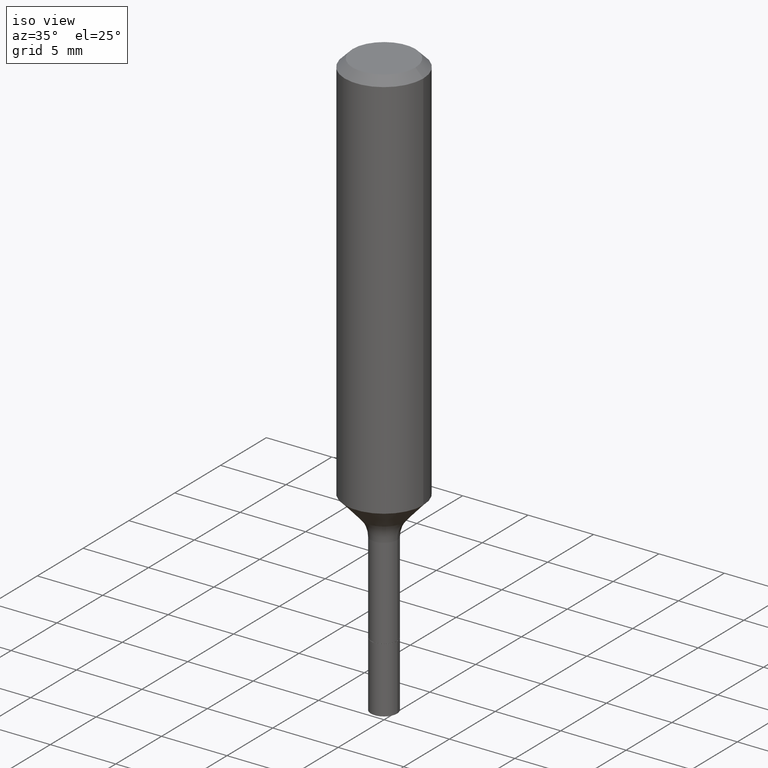
[diagram: clean part render]
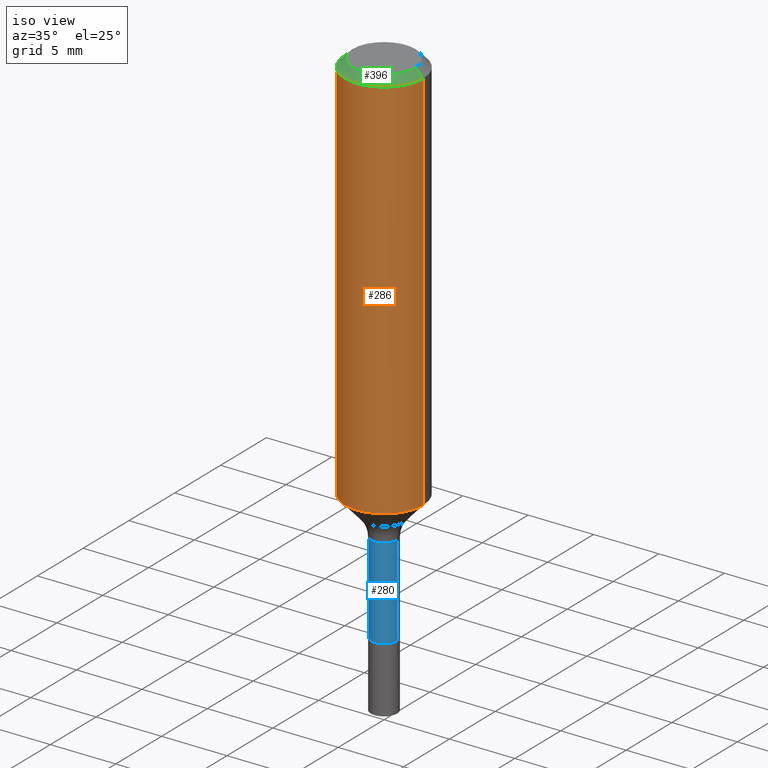
[diagram: same view with three faces highlighted in distinct colors, each labeled with its STEP entity id]
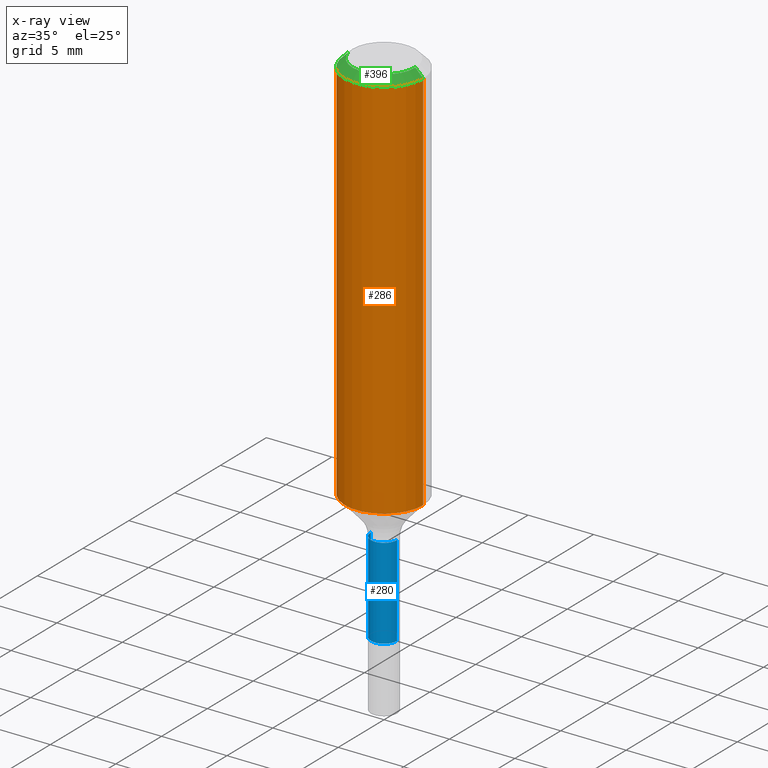
[diagram: x-ray of the same camera — body ghosted, the three highlighted faces saturated]
A machine part, iso view with three faces highlighted in distinct colors.
The next image is the same camera in x-ray (body ghosted, the three faces saturated) — at least one of them is partly hidden behind the body in this view.
Their STEP definitions:

[orange] entity #286 — the highlighted cylindrical surface (partial cylindrical patch) has radius 2.9997 mm, axis along (-0, 0, 1).
#8 = VERTEX_POINT ( 'NONE', #454 ) ;
#26 = CARTESIAN_POINT ( 'NONE',  ( 5.776197320209326656E-31, -8.246878922347558061E-17, -0.02362000000000013741 ) ) ;
#36 = VERTEX_POINT ( 'NONE', #187 ) ;
#57 = EDGE_LOOP ( 'NONE', ( #487, #238, #99, #422 ) ) ;
#61 = VECTOR ( 'NONE', #281, 39.37007874015748143 ) ;
#71 = VERTEX_POINT ( 'NONE', #182 ) ;
#98 = DIRECTION ( 'NONE',  ( -2.445468806185136597E-29, 3.491481338843145583E-15, 1.000000000000000000 ) ) ;
#99 = ORIENTED_EDGE ( 'NONE', *, *, #335, .T. ) ;
#104 = CYLINDRICAL_SURFACE ( 'NONE', #314, 0.1181000000000000660 ) ;
#108 = CARTESIAN_POINT ( 'NONE',  ( 0.000000000000000000, 0.000000000000000000, 0.000000000000000000 ) ) ;
#133 = EDGE_CURVE ( 'NONE', #412, #36, #359, .T. ) ;
#146 = DIRECTION ( 'NONE',  ( 1.000000000000000000, -6.982962677686266711E-15, 4.876176775795936353E-29 ) ) ;
#182 = CARTESIAN_POINT ( 'NONE',  ( 0.1181000000000001354, -4.957687469367858112E-15, -1.183738126036360860 ) ) ;
#187 = CARTESIAN_POINT ( 'NONE',  ( -0.1180999999999999966, -1.268583212245612878E-15, -0.02362000000000013741 ) ) ;
#200 = CARTESIAN_POINT ( 'NONE',  ( -0.1181000000000001354, -3.293848606200430074E-15, -1.183738126036360860 ) ) ;
#212 = VECTOR ( 'NONE', #218, 39.37007874015748143 ) ;
#218 = DIRECTION ( 'NONE',  ( -2.445468806185136877E-29, 3.491481338843145188E-15, 1.000000000000000000 ) ) ;
#224 = CARTESIAN_POINT ( 'NONE',  ( 2.894794661913970224E-29, -4.132999577133109060E-15, -1.183738126036360860 ) ) ;
#238 = ORIENTED_EDGE ( 'NONE', *, *, #490, .T. ) ;
#242 = AXIS2_PLACEMENT_3D ( 'NONE', #224, #506, #310 ) ;
#267 = CIRCLE ( 'NONE', #242, 0.1181000000000001354 ) ;
#281 = DIRECTION ( 'NONE',  ( -2.445468806185136877E-29, 3.491481338843145188E-15, 1.000000000000000000 ) ) ;
#284 = CARTESIAN_POINT ( 'NONE',  ( -0.1181000000000000660, 8.391509709326787887E-16, -5.809262341591047287E-30 ) ) ;
#286 = ADVANCED_FACE ( 'NONE', ( #508 ), #104, .T. ) ;
#310 = DIRECTION ( 'NONE',  ( 1.000000000000000000, -6.982962677686269077E-15, 0.000000000000000000 ) ) ;
#314 = AXIS2_PLACEMENT_3D ( 'NONE', #108, #98, #146 ) ;
#335 = EDGE_CURVE ( 'NONE', #71, #8, #391, .T. ) ;
#359 = LINE ( 'NONE', #284, #61 ) ;
#361 = CIRCLE ( 'NONE', #509, 0.1180999999999999966 ) ;
#391 = LINE ( 'NONE', #462, #212 ) ;
#412 = VERTEX_POINT ( 'NONE', #200 ) ;
#422 = ORIENTED_EDGE ( 'NONE', *, *, #438, .F. ) ;
#438 = EDGE_CURVE ( 'NONE', #36, #8, #361, .T. ) ;
#454 = CARTESIAN_POINT ( 'NONE',  ( 0.1180999999999999966, -9.071566814582237199E-16, -0.02362000000000013741 ) ) ;
#462 = CARTESIAN_POINT ( 'NONE',  ( 0.1181000000000000660, -8.246878922347485584E-16, 5.758764772215003944E-30 ) ) ;
#470 = DIRECTION ( 'NONE',  ( -2.445468806185136597E-29, 3.491481338843145583E-15, 1.000000000000000000 ) ) ;
#487 = ORIENTED_EDGE ( 'NONE', *, *, #133, .F. ) ;
#490 = EDGE_CURVE ( 'NONE', #412, #71, #267, .T. ) ;
#503 = DIRECTION ( 'NONE',  ( 1.000000000000000000, -6.982962677686266711E-15, 0.000000000000000000 ) ) ;
#506 = DIRECTION ( 'NONE',  ( -2.445468806185136597E-29, 3.491481338843145583E-15, 1.000000000000000000 ) ) ;
#508 = FACE_OUTER_BOUND ( 'NONE', #57, .T. ) ;
#509 = AXIS2_PLACEMENT_3D ( 'NONE', #26, #470, #503 ) ;

[blue] entity #280 — the highlighted cylindrical surface (edge-blend (fillet) strip) has radius 0.9995 mm, axis along (-0, 0, 1).
#20 = CIRCLE ( 'NONE', #82, 0.03935000000000000303 ) ;
#39 = VERTEX_POINT ( 'NONE', #265 ) ;
#51 = DIRECTION ( 'NONE',  ( -2.445468806185136597E-29, 3.491481338843145583E-15, 1.000000000000000000 ) ) ;
#82 = AXIS2_PLACEMENT_3D ( 'NONE', #111, #402, #290 ) ;
#86 = ORIENTED_EDGE ( 'NONE', *, *, #198, .T. ) ;
#101 = CARTESIAN_POINT ( 'NONE',  ( 0.000000000000000000, 0.000000000000000000, 0.000000000000000000 ) ) ;
#106 = LINE ( 'NONE', #460, #431 ) ;
#111 = CARTESIAN_POINT ( 'NONE',  ( 3.849656994696641770E-29, -5.496289923606880350E-15, -1.574200000000000044 ) ) ;
#138 = DIRECTION ( 'NONE',  ( 1.000000000000000000, -6.982962677686275388E-15, 0.000000000000000000 ) ) ;
#161 = DIRECTION ( 'NONE',  ( -2.445468806185136877E-29, 3.491481338843145188E-15, 1.000000000000000000 ) ) ;
#163 = EDGE_LOOP ( 'NONE', ( #201, #86, #289, #295 ) ) ;
#173 = VECTOR ( 'NONE', #161, 39.37007874015748143 ) ;
#198 = EDGE_CURVE ( 'NONE', #39, #323, #20, .T. ) ;
#201 = ORIENTED_EDGE ( 'NONE', *, *, #230, .F. ) ;
#225 = FACE_OUTER_BOUND ( 'NONE', #163, .T. ) ;
#228 = CARTESIAN_POINT ( 'NONE',  ( 3.178375807398822119E-29, -4.537878296094436237E-15, -1.299700000000000077 ) ) ;
#230 = EDGE_CURVE ( 'NONE', #39, #285, #411, .T. ) ;
#232 = CARTESIAN_POINT ( 'NONE',  ( -0.03934999999999998221, 2.795985665215992968E-16, -1.935600958015304591E-30 ) ) ;
#265 = CARTESIAN_POINT ( 'NONE',  ( -0.03935000000000000303, -4.737485543329059687E-15, -1.574200000000000044 ) ) ;
#271 = CARTESIAN_POINT ( 'NONE',  ( 0.03935000000000000303, -5.771069504973835267E-15, -1.574200000000000044 ) ) ;
#274 = DIRECTION ( 'NONE',  ( -2.445468806185136597E-29, 3.491481338843145583E-15, 1.000000000000000000 ) ) ;
#280 = ADVANCED_FACE ( 'NONE', ( #225 ), #349, .T. ) ;
#285 = VERTEX_POINT ( 'NONE', #507 ) ;
#289 = ORIENTED_EDGE ( 'NONE', *, *, #477, .T. ) ;
#290 = DIRECTION ( 'NONE',  ( 1.000000000000000000, -6.982962677686269077E-15, 0.000000000000000000 ) ) ;
#294 = EDGE_CURVE ( 'NONE', #285, #346, #473, .T. ) ;
#295 = ORIENTED_EDGE ( 'NONE', *, *, #294, .F. ) ;
#300 = DIRECTION ( 'NONE',  ( -2.445468806185136877E-29, 3.491481338843145188E-15, 1.000000000000000000 ) ) ;
#323 = VERTEX_POINT ( 'NONE', #271 ) ;
#346 = VERTEX_POINT ( 'NONE', #380 ) ;
#349 = CYLINDRICAL_SURFACE ( 'NONE', #374, 0.03934999999999998221 ) ;
#374 = AXIS2_PLACEMENT_3D ( 'NONE', #101, #51, #468 ) ;
#380 = CARTESIAN_POINT ( 'NONE',  ( 0.03934999999999996834, -4.812657877461391154E-15, -1.299700000000000077 ) ) ;
#402 = DIRECTION ( 'NONE',  ( -2.445468806185136597E-29, 3.491481338843145583E-15, 1.000000000000000000 ) ) ;
#411 = LINE ( 'NONE', #232, #173 ) ;
#431 = VECTOR ( 'NONE', #300, 39.37007874015748143 ) ;
#460 = CARTESIAN_POINT ( 'NONE',  ( 0.03934999999999998221, -2.747795813669544732E-16, 1.918775561275700023E-30 ) ) ;
#468 = DIRECTION ( 'NONE',  ( 1.000000000000000000, -6.982962677686266711E-15, 4.876176775795936353E-29 ) ) ;
#473 = CIRCLE ( 'NONE', #512, 0.03934999999999996834 ) ;
#477 = EDGE_CURVE ( 'NONE', #323, #346, #106, .T. ) ;
#507 = CARTESIAN_POINT ( 'NONE',  ( -0.03934999999999996834, -4.737485543329059687E-15, -1.299700000000000077 ) ) ;
#512 = AXIS2_PLACEMENT_3D ( 'NONE', #228, #274, #138 ) ;

[green] entity #396 — the highlighted conical surface has half-angle 45 deg.
#6 = DIRECTION ( 'NONE',  ( -1.000000000000000000, 6.982962677686266711E-15, 0.000000000000000000 ) ) ;
#8 = VERTEX_POINT ( 'NONE', #454 ) ;
#26 = CARTESIAN_POINT ( 'NONE',  ( 5.776197320209326656E-31, -8.246878922347558061E-17, -0.02362000000000013741 ) ) ;
#27 = EDGE_CURVE ( 'NONE', #254, #36, #355, .T. ) ;
#28 = AXIS2_PLACEMENT_3D ( 'NONE', #471, #311, #312 ) ;
#33 = VECTOR ( 'NONE', #309, 39.37007874015748143 ) ;
#34 = LINE ( 'NONE', #250, #432 ) ;
#36 = VERTEX_POINT ( 'NONE', #187 ) ;
#42 = ORIENTED_EDGE ( 'NONE', *, *, #169, .F. ) ;
#50 = CIRCLE ( 'NONE', #28, 0.09447999999999998066 ) ;
#79 = DIRECTION ( 'NONE',  ( 0.7071067811865461294, -7.319954787623251312E-15, -0.7071067811865489050 ) ) ;
#123 = ORIENTED_EDGE ( 'NONE', *, *, #275, .F. ) ;
#132 = AXIS2_PLACEMENT_3D ( 'NONE', #444, #279, #6 ) ;
#160 = ORIENTED_EDGE ( 'NONE', *, *, #27, .T. ) ;
#169 = EDGE_CURVE ( 'NONE', #283, #8, #34, .T. ) ;
#176 = ORIENTED_EDGE ( 'NONE', *, *, #438, .T. ) ;
#187 = CARTESIAN_POINT ( 'NONE',  ( -0.1180999999999999966, -1.268583212245612878E-15, -0.02362000000000013741 ) ) ;
#250 = CARTESIAN_POINT ( 'NONE',  ( 0.1180999999999999966, -8.926936027602933910E-16, -0.02362000000000013741 ) ) ;
#254 = VERTEX_POINT ( 'NONE', #342 ) ;
#269 = CARTESIAN_POINT ( 'NONE',  ( 0.09447999999999998066, -7.704367267948738690E-16, -3.085620075131172158E-17 ) ) ;
#275 = EDGE_CURVE ( 'NONE', #254, #283, #50, .T. ) ;
#279 = DIRECTION ( 'NONE',  ( 2.445468806185136597E-29, -3.491481338843145583E-15, -1.000000000000000000 ) ) ;
#283 = VERTEX_POINT ( 'NONE', #269 ) ;
#309 = DIRECTION ( 'NONE',  ( -0.7071067811865461294, 2.468850131082242072E-15, -0.7071067811865489050 ) ) ;
#311 = DIRECTION ( 'NONE',  ( -2.445468806185136597E-29, 3.491481338843145583E-15, 1.000000000000000000 ) ) ;
#312 = DIRECTION ( 'NONE',  ( 1.000000000000000000, -6.982962677686267499E-15, 4.875432709231658792E-29 ) ) ;
#342 = CARTESIAN_POINT ( 'NONE',  ( -0.09447999999999998066, 7.009847083995354710E-16, -3.085620075132147757E-17 ) ) ;
#355 = LINE ( 'NONE', #469, #33 ) ;
#358 = CONICAL_SURFACE ( 'NONE', #132, 0.1180999999999999966, 0.7853981633974463916 ) ;
#361 = CIRCLE ( 'NONE', #509, 0.1180999999999999966 ) ;
#396 = ADVANCED_FACE ( 'NONE', ( #400 ), #358, .T. ) ;
#400 = FACE_OUTER_BOUND ( 'NONE', #518, .T. ) ;
#432 = VECTOR ( 'NONE', #79, 39.37007874015748143 ) ;
#438 = EDGE_CURVE ( 'NONE', #36, #8, #361, .T. ) ;
#444 = CARTESIAN_POINT ( 'NONE',  ( 5.776197320209326656E-31, -8.246878922347558061E-17, -0.02362000000000013741 ) ) ;
#454 = CARTESIAN_POINT ( 'NONE',  ( 0.1180999999999999966, -9.071566814582237199E-16, -0.02362000000000013741 ) ) ;
#469 = CARTESIAN_POINT ( 'NONE',  ( -0.1180999999999999966, 7.422191030112725094E-16, -0.02362000000000013741 ) ) ;
#470 = DIRECTION ( 'NONE',  ( -2.445468806185136597E-29, 3.491481338843145583E-15, 1.000000000000000000 ) ) ;
#471 = CARTESIAN_POINT ( 'NONE',  ( 7.545787641473140628E-46, -1.077338491108201769E-31, -3.085620075131671975E-17 ) ) ;
#503 = DIRECTION ( 'NONE',  ( 1.000000000000000000, -6.982962677686266711E-15, 0.000000000000000000 ) ) ;
#509 = AXIS2_PLACEMENT_3D ( 'NONE', #26, #470, #503 ) ;
#518 = EDGE_LOOP ( 'NONE', ( #42, #123, #160, #176 ) ) ;